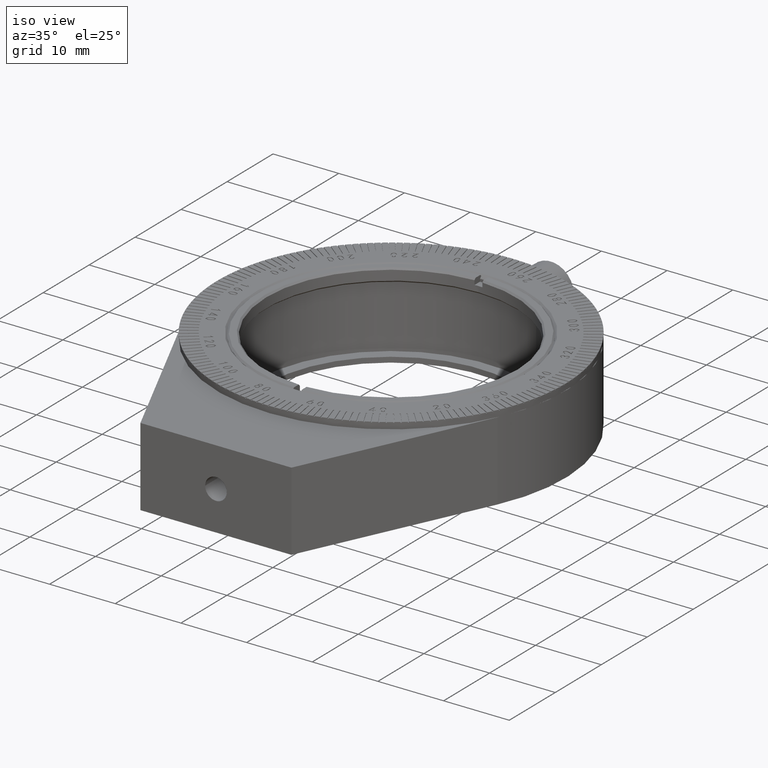
[diagram: clean part render]
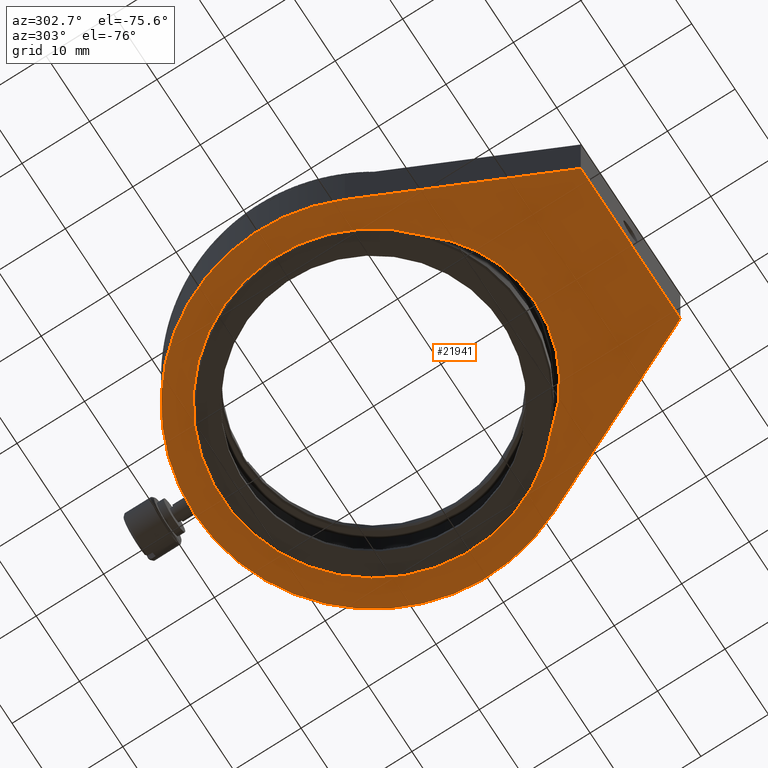
[diagram: tour spotlight — one face highlighted and labeled with its STEP entity id]
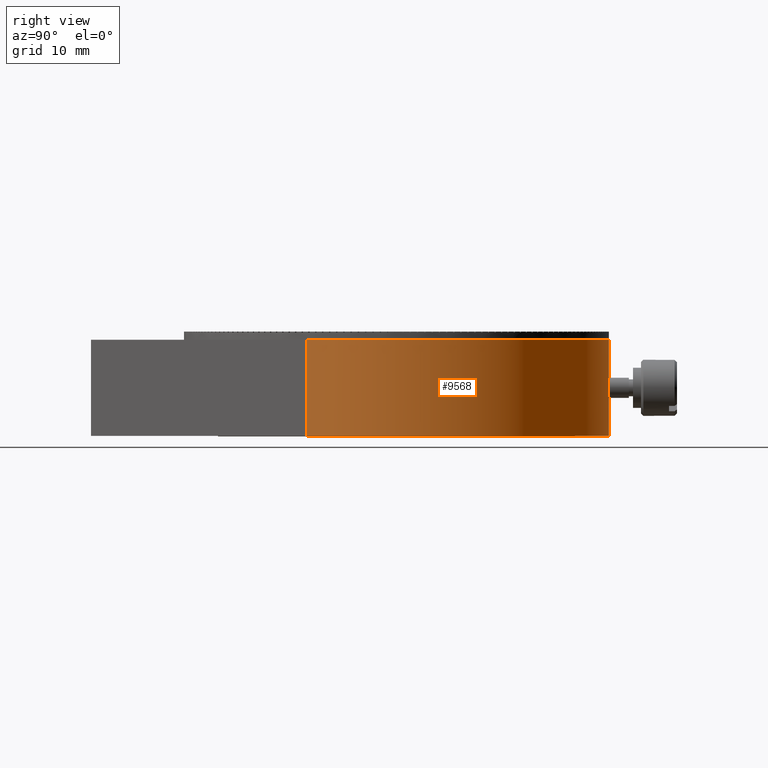
[diagram: tour spotlight — one face highlighted and labeled with its STEP entity id]
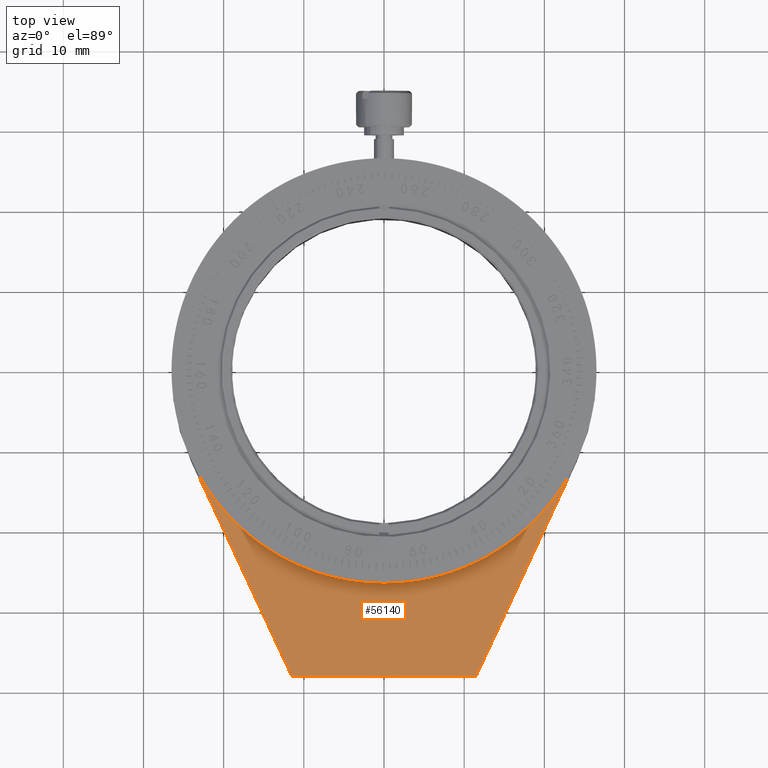
[diagram: tour spotlight — one face highlighted and labeled with its STEP entity id]
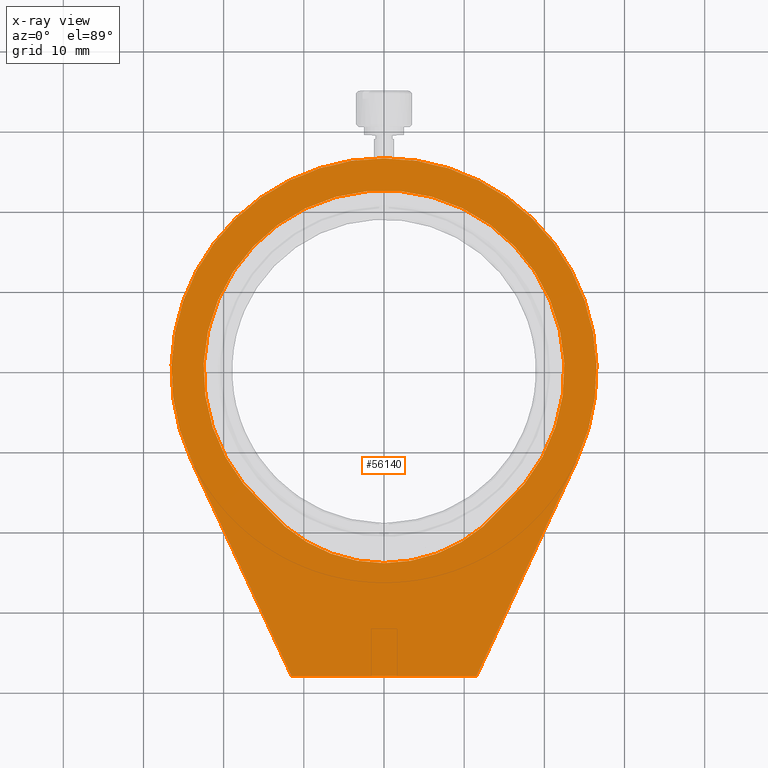
[diagram: x-ray of the same camera — body ghosted, this tour face saturated]
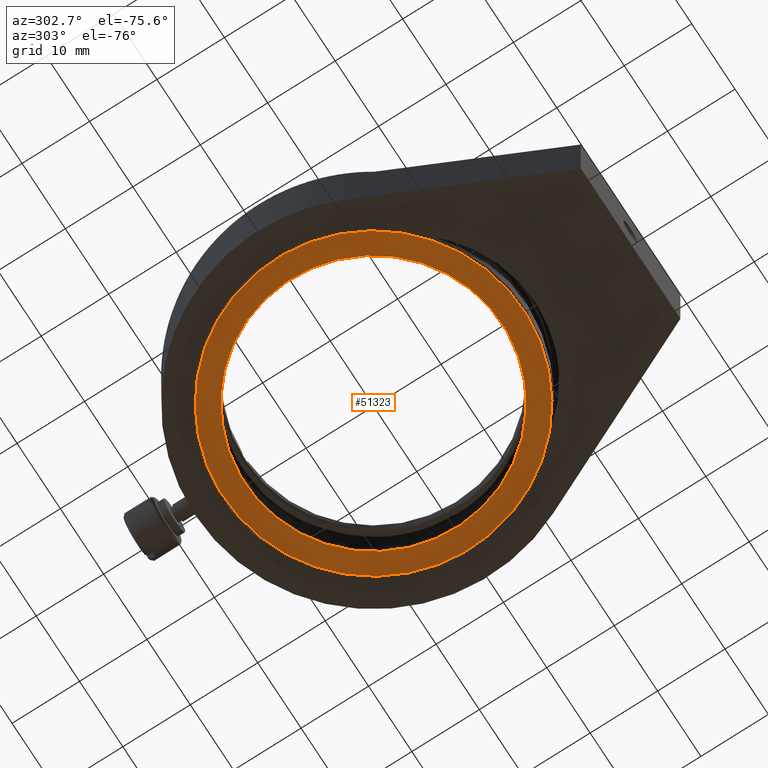
[diagram: tour spotlight — one face highlighted and labeled with its STEP entity id]
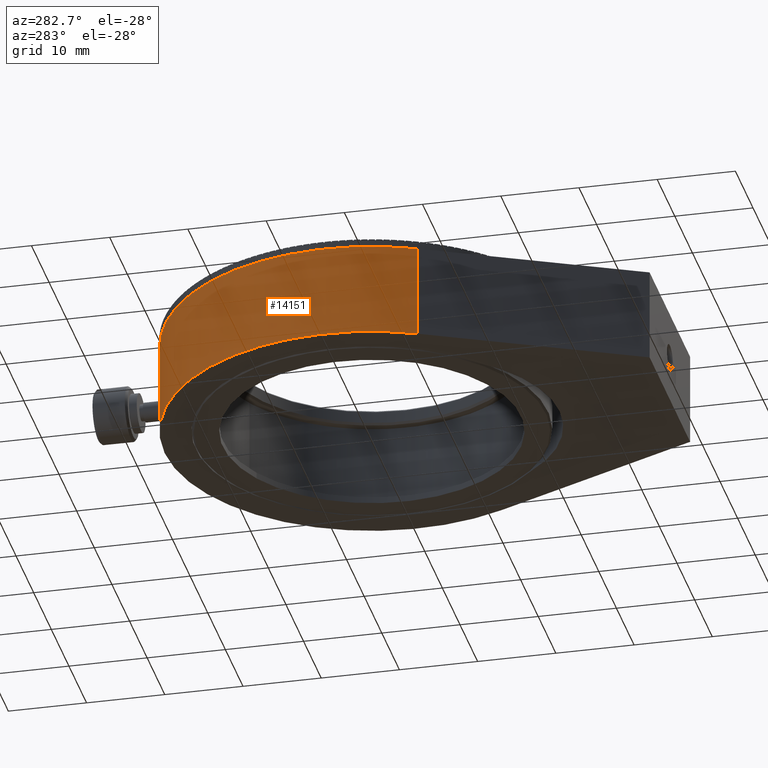
[diagram: tour spotlight — one face highlighted and labeled with its STEP entity id]
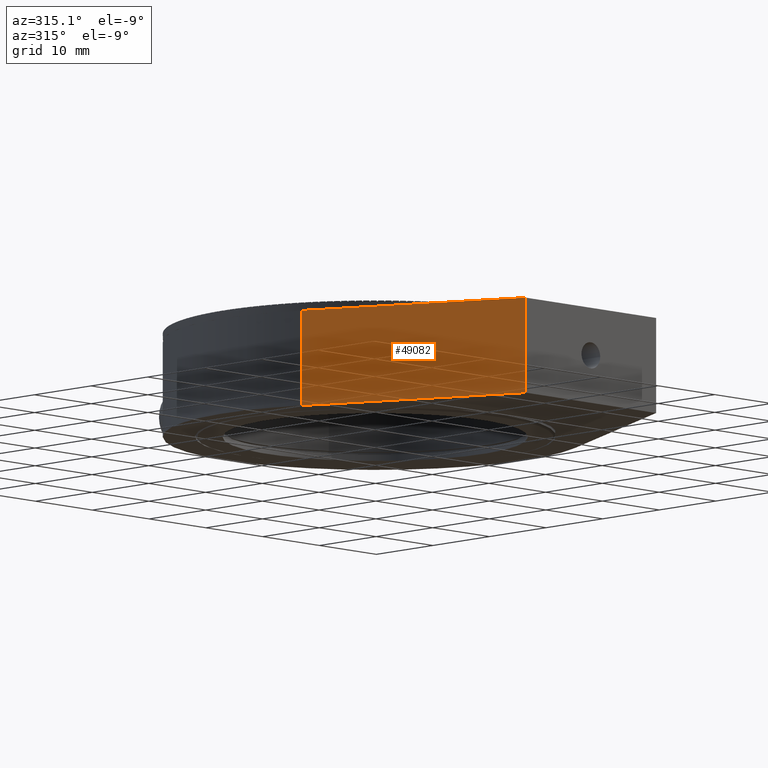
[diagram: tour spotlight — one face highlighted and labeled with its STEP entity id]
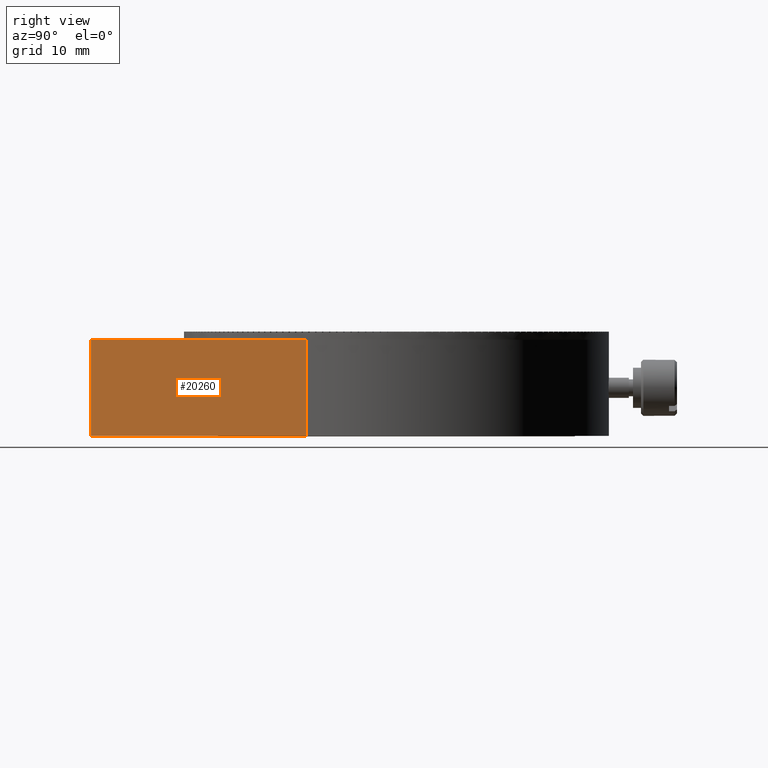
[diagram: tour spotlight — one face highlighted and labeled with its STEP entity id]
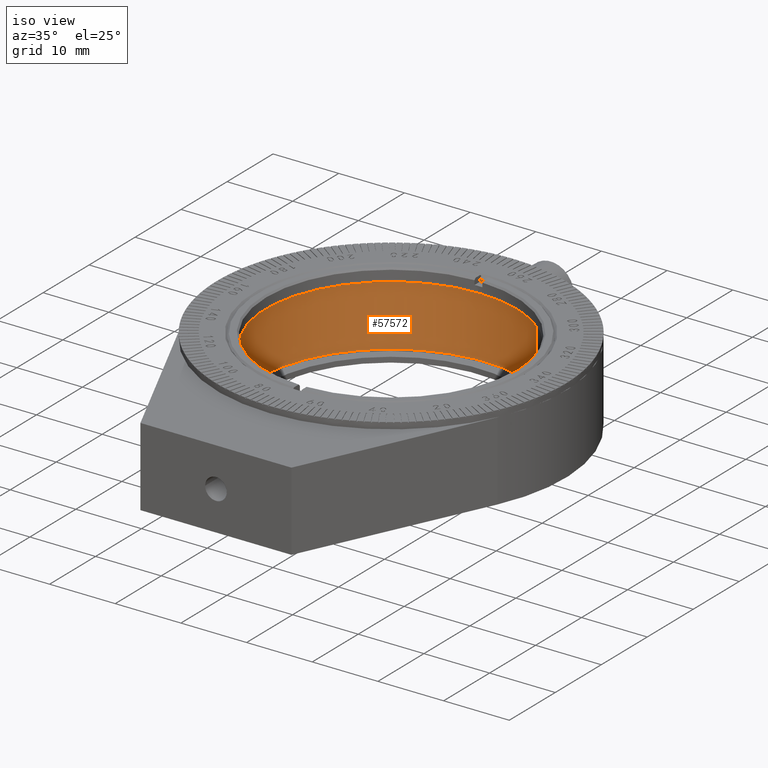
[diagram: tour spotlight — one face highlighted and labeled with its STEP entity id]
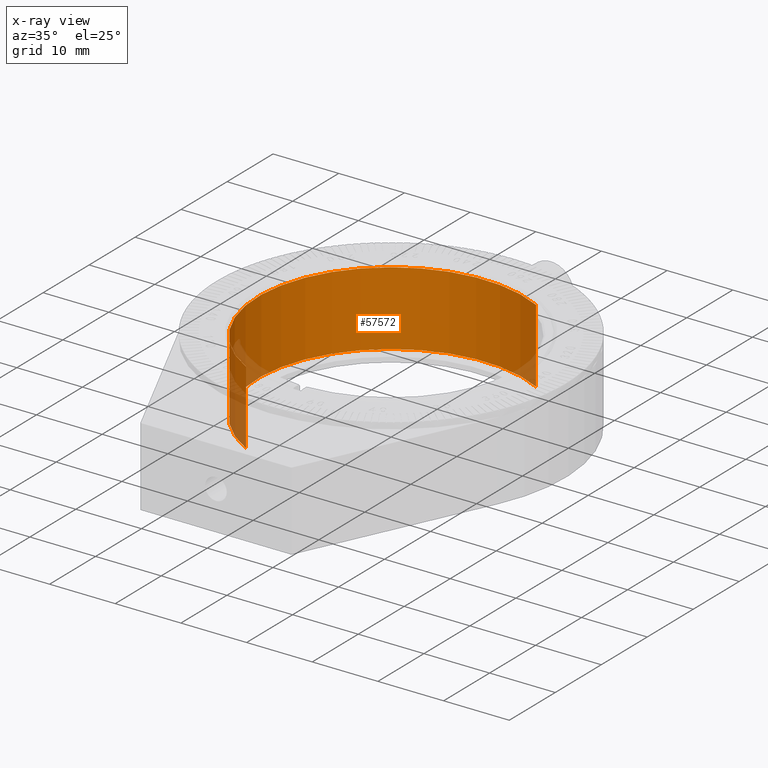
[diagram: x-ray of the same camera — body ghosted, this tour face saturated]
A machine part: a face-by-face anatomy tour. The part has 1216 B-rep faces; the first image is the clean iso view, then the 8 largest visible faces are spotlighted one at a time (largest first), each with its STEP entity span.

Face 1 — auxiliary view, entity #21941. In plain terms, the highlighted planar face has unit normal (0, 0, 1).
Definition (entity closure, byte-faithful):
#693 = CARTESIAN_POINT ( 'NONE',  ( 0.000000000000000000, 0.000000000000000000, 0.000000000000000000 ) ) ;
#1693 = DIRECTION ( 'NONE',  ( 0.4218762655402129580, 0.000000000000000000, 0.9066534159059036480 ) ) ;
#3057 = VERTEX_POINT ( 'NONE', #28458 ) ;
#3809 = AXIS2_PLACEMENT_3D ( 'NONE', #693, #5794, #25268 ) ;
#4219 = DIRECTION ( 'NONE',  ( 0.000000000000000000, 1.000000000000000000, 0.000000000000000000 ) ) ;
#4301 = AXIS2_PLACEMENT_3D ( 'NONE', #53521, #19335, #33692 ) ;
#5794 = DIRECTION ( 'NONE',  ( 0.000000000000000000, 1.000000000000000000, 0.000000000000000000 ) ) ;
#5939 = ORIENTED_EDGE ( 'NONE', *, *, #41663, .F. ) ;
#6987 = ORIENTED_EDGE ( 'NONE', *, *, #36560, .T. ) ;
#7386 = VERTEX_POINT ( 'NONE', #50400 ) ;
#7425 = LINE ( 'NONE', #46718, #44199 ) ;
#7437 = VERTEX_POINT ( 'NONE', #21331 ) ;
#7914 = VERTEX_POINT ( 'NONE', #8642 ) ;
#8642 = CARTESIAN_POINT ( 'NONE',  ( 24.02631552150645433, 0.000000000000000000, 11.17972103681563745 ) ) ;
#10161 = ORIENTED_EDGE ( 'NONE', *, *, #38792, .F. ) ;
#12512 = CARTESIAN_POINT ( 'NONE',  ( 6.123233995736765296E-16, 0.000000000000000000, 24.00000000000000000 ) ) ;
#13027 = DIRECTION ( 'NONE',  ( 0.4218762655402126249, -0.000000000000000000, -0.9066534159059038700 ) ) ;
#14198 = EDGE_LOOP ( 'NONE', ( #54582, #10161, #24866, #5939, #23705 ) ) ;
#14700 = VECTOR ( 'NONE', #58302, 1000.000000000000000 ) ;
#15290 = CARTESIAN_POINT ( 'NONE',  ( -11.49999999999999467, 0.000000000000000000, 38.10000000000000142 ) ) ;
#15405 = ORIENTED_EDGE ( 'NONE', *, *, #34667, .T. ) ;
#17173 = LINE ( 'NONE', #31844, #30286 ) ;
#17439 = VERTEX_POINT ( 'NONE', #12512 ) ;
#19335 = DIRECTION ( 'NONE',  ( 0.000000000000000000, 1.000000000000000000, 0.000000000000000000 ) ) ;
#20140 = CIRCLE ( 'NONE', #3809, 26.50000000000000355 ) ;
#21331 = CARTESIAN_POINT ( 'NONE',  ( -24.02631552150645433, 0.000000000000000000, 11.17972103681564278 ) ) ;
#21889 = CARTESIAN_POINT ( 'NONE',  ( 0.000000000000000000, 0.000000000000000000, 0.000000000000000000 ) ) ;
#21941 = ADVANCED_FACE ( 'NONE', ( #48080, #27638 ), #33387, .F. ) ;
#23705 = ORIENTED_EDGE ( 'NONE', *, *, #39220, .F. ) ;
#24139 = AXIS2_PLACEMENT_3D ( 'NONE', #21889, #36255, #50961 ) ;
#24866 = ORIENTED_EDGE ( 'NONE', *, *, #62042, .F. ) ;
#25268 = DIRECTION ( 'NONE',  ( 0.000000000000000000, 0.000000000000000000, 1.000000000000000000 ) ) ;
#27451 = CARTESIAN_POINT ( 'NONE',  ( 6.123233995736765296E-16, 0.000000000000000000, 5.000000000000000000 ) ) ;
#27638 = FACE_OUTER_BOUND ( 'NONE', #14198, .T. ) ;
#27859 = CARTESIAN_POINT ( 'NONE',  ( 0.000000000000000000, 0.000000000000000000, 0.000000000000000000 ) ) ;
#28458 = CARTESIAN_POINT ( 'NONE',  ( 0.000000000000000000, 0.000000000000000000, -26.50000000000000355 ) ) ;
#29194 = CIRCLE ( 'NONE', #50572, 19.00000000000000000 ) ;
#29854 = EDGE_CURVE ( 'NONE', #7914, #3057, #34146, .T. ) ;
#30157 = CARTESIAN_POINT ( 'NONE',  ( 6.123233995736765296E-16, 0.000000000000000000, 5.000000000000000000 ) ) ;
#30214 = EDGE_LOOP ( 'NONE', ( #15405, #54291, #6987 ) ) ;
#30286 = VECTOR ( 'NONE', #13027, 1000.000000000000114 ) ;
#31844 = CARTESIAN_POINT ( 'NONE',  ( 24.02631552150645433, 0.000000000000000000, 11.17972103681563745 ) ) ;
#31923 = DIRECTION ( 'NONE',  ( 0.000000000000000000, 0.000000000000000000, 1.000000000000000000 ) ) ;
#33387 = PLANE ( 'NONE',  #4301 ) ;
#33685 = EDGE_CURVE ( 'NONE', #36043, #17439, #57519, .T. ) ;
#33692 = DIRECTION ( 'NONE',  ( 0.000000000000000000, -0.000000000000000000, 1.000000000000000000 ) ) ;
#34146 = CIRCLE ( 'NONE', #61717, 26.50000000000000355 ) ;
#34667 = EDGE_CURVE ( 'NONE', #7386, #36043, #40458, .T. ) ;
#36043 = VERTEX_POINT ( 'NONE', #60709 ) ;
#36255 = DIRECTION ( 'NONE',  ( 0.000000000000000000, 1.000000000000000000, 0.000000000000000000 ) ) ;
#36560 = EDGE_CURVE ( 'NONE', #17439, #7386, #29194, .T. ) ;
#38792 = EDGE_CURVE ( 'NONE', #48562, #7914, #17173, .T. ) ;
#39128 = LINE ( 'NONE', #58619, #14700 ) ;
#39220 = EDGE_CURVE ( 'NONE', #3057, #7437, #20140, .T. ) ;
#40458 = CIRCLE ( 'NONE', #24139, 22.50000000000000355 ) ;
#41663 = EDGE_CURVE ( 'NONE', #7437, #56861, #7425, .T. ) ;
#44199 = VECTOR ( 'NONE', #1693, 1000.000000000000114 ) ;
#45151 = DIRECTION ( 'NONE',  ( 0.000000000000000000, 1.000000000000000000, 0.000000000000000000 ) ) ;
#46718 = CARTESIAN_POINT ( 'NONE',  ( -24.02631552150645433, 0.000000000000000000, 11.17972103681564278 ) ) ;
#48080 = FACE_BOUND ( 'NONE', #30214, .T. ) ;
#48562 = VERTEX_POINT ( 'NONE', #59453 ) ;
#50400 = CARTESIAN_POINT ( 'NONE',  ( 14.71051919546009223, 0.000000000000000000, 17.02500000000001279 ) ) ;
#50572 = AXIS2_PLACEMENT_3D ( 'NONE', #30157, #45151, #58612 ) ;
#50961 = DIRECTION ( 'NONE',  ( 0.000000000000000000, 0.000000000000000000, 1.000000000000000000 ) ) ;
#52382 = DIRECTION ( 'NONE',  ( 0.000000000000000000, 1.000000000000000000, 0.000000000000000000 ) ) ;
#53521 = CARTESIAN_POINT ( 'NONE',  ( 0.000000000000000000, 0.000000000000000000, 0.000000000000000000 ) ) ;
#54291 = ORIENTED_EDGE ( 'NONE', *, *, #33685, .T. ) ;
#54415 = AXIS2_PLACEMENT_3D ( 'NONE', #27451, #52382, #31923 ) ;
#54582 = ORIENTED_EDGE ( 'NONE', *, *, #29854, .F. ) ;
#56861 = VERTEX_POINT ( 'NONE', #15290 ) ;
#56959 = DIRECTION ( 'NONE',  ( 0.000000000000000000, 0.000000000000000000, 1.000000000000000000 ) ) ;
#57519 = CIRCLE ( 'NONE', #54415, 19.00000000000000000 ) ;
#58302 = DIRECTION ( 'NONE',  ( 1.000000000000000000, 0.000000000000000000, 0.000000000000000000 ) ) ;
#58612 = DIRECTION ( 'NONE',  ( 0.000000000000000000, 0.000000000000000000, 1.000000000000000000 ) ) ;
#58619 = CARTESIAN_POINT ( 'NONE',  ( -11.49999999999999467, 0.000000000000000000, 38.10000000000000142 ) ) ;
#59453 = CARTESIAN_POINT ( 'NONE',  ( 11.50000000000000533, 0.000000000000000000, 38.10000000000000142 ) ) ;
#60709 = CARTESIAN_POINT ( 'NONE',  ( -14.71051919546008513, 0.000000000000000000, 17.02500000000001634 ) ) ;
#61717 = AXIS2_PLACEMENT_3D ( 'NONE', #27859, #4219, #56959 ) ;
#62042 = EDGE_CURVE ( 'NONE', #56861, #48562, #39128, .T. ) ;

Face 2 — right view, entity #9568. In plain terms, the highlighted cylindrical surface (partial cylindrical patch) has radius 26.5 mm, axis along (-0, -0, -1).
Definition (entity closure, byte-faithful):
#958 = CARTESIAN_POINT ( 'NONE',  ( 1.024999999999995470, 5.866244836570563947, -26.48016946698039575 ) ) ;
#1707 = CARTESIAN_POINT ( 'NONE',  ( 0.9984107039990427479, 6.268017368793022293, -26.48123520573021139 ) ) ;
#2026 = DIRECTION ( 'NONE',  ( -0.000000000000000000, -1.000000000000000000, -0.000000000000000000 ) ) ;
#2322 = AXIS2_PLACEMENT_3D ( 'NONE', #45082, #15101, #15407 ) ;
#2345 = LINE ( 'NONE', #32667, #44683 ) ;
#2741 = EDGE_LOOP ( 'NONE', ( #40285, #12421, #61053, #24281, #62384, #61979, #12528 ) ) ;
#3057 = VERTEX_POINT ( 'NONE', #28458 ) ;
#3720 = CYLINDRICAL_SURFACE ( 'NONE', #7356, 26.50000000000000355 ) ;
#4219 = DIRECTION ( 'NONE',  ( 0.000000000000000000, 1.000000000000000000, 0.000000000000000000 ) ) ;
#6855 = CARTESIAN_POINT ( 'NONE',  ( 1.024999999999995026, 6.000000000000000000, -26.48016946698038154 ) ) ;
#7356 = AXIS2_PLACEMENT_3D ( 'NONE', #42693, #27352, #13307 ) ;
#7914 = VERTEX_POINT ( 'NONE', #8642 ) ;
#8482 = CARTESIAN_POINT ( 'NONE',  ( 24.02631552150645433, 12.00000000000000000, 11.17972103681563745 ) ) ;
#8642 = CARTESIAN_POINT ( 'NONE',  ( 24.02631552150645433, 0.000000000000000000, 11.17972103681563745 ) ) ;
#9207 = CARTESIAN_POINT ( 'NONE',  ( 6.001570846847187291E-13, 7.025000000005595879, -26.50000000000021672 ) ) ;
#9568 = ADVANCED_FACE ( 'NONE', ( #47158 ), #3720, .T. ) ;
#11487 = CIRCLE ( 'NONE', #2322, 26.50000000000000355 ) ;
#12421 = ORIENTED_EDGE ( 'NONE', *, *, #40884, .F. ) ;
#12528 = ORIENTED_EDGE ( 'NONE', *, *, #30675, .T. ) ;
#13307 = DIRECTION ( 'NONE',  ( 0.000000000000000000, 0.000000000000000000, -1.000000000000000000 ) ) ;
#15101 = DIRECTION ( 'NONE',  ( 0.000000000000000000, 1.000000000000000000, 0.000000000000000000 ) ) ;
#15208 = B_SPLINE_CURVE_WITH_KNOTS ( 'NONE', 3,
 ( #15466, #59238, #1707, #51449, #22370, #34935, #54444, #59539, #40675, #15783 ),
 .UNSPECIFIED., .F., .F.,
 ( 4, 2, 2, 2, 4 ),
 ( 0.001602822513376310704, 0.002003346140975530761, 0.002403869768574751035, 0.002804393396173971310, 0.003204917023773191584 ),
 .UNSPECIFIED. ) ;
#15341 = CARTESIAN_POINT ( 'NONE',  ( 0.2684473790037883445, 5.001687726428366787, -26.49893120856939177 ) ) ;
#15394 = VERTEX_POINT ( 'NONE', #25514 ) ;
#15407 = DIRECTION ( 'NONE',  ( 0.000000000000000000, 0.000000000000000000, 1.000000000000000000 ) ) ;
#15466 = CARTESIAN_POINT ( 'NONE',  ( 1.024999999999995026, 6.000000000000000000, -26.48016946698038154 ) ) ;
#15783 = CARTESIAN_POINT ( 'NONE',  ( 6.001570846847187291E-13, 7.025000000005595879, -26.50000000000021672 ) ) ;
#18259 = CARTESIAN_POINT ( 'NONE',  ( 0.000000000000000000, 12.00000000000000000, -26.50000000000000355 ) ) ;
#19099 = VERTEX_POINT ( 'NONE', #6855 ) ;
#19206 = DIRECTION ( 'NONE',  ( -0.000000000000000000, -1.000000000000000000, -0.000000000000000000 ) ) ;
#19823 = CARTESIAN_POINT ( 'NONE',  ( 0.1354926301760059348, 4.975000000000005862, -26.49999999999999645 ) ) ;
#20444 = CARTESIAN_POINT ( 'NONE',  ( 1.024999999999995026, 6.000000000000000000, -26.48016946698038154 ) ) ;
#21903 = VERTEX_POINT ( 'NONE', #8482 ) ;
#22370 = CARTESIAN_POINT ( 'NONE',  ( 0.8204881542323093635, 6.629070808477672827, -26.48746794309859709 ) ) ;
#24281 = ORIENTED_EDGE ( 'NONE', *, *, #29854, .T. ) ;
#25514 = CARTESIAN_POINT ( 'NONE',  ( 0.000000000000000000, 12.00000000000000000, -26.50000000000000355 ) ) ;
#26179 = CARTESIAN_POINT ( 'NONE',  ( 0.000000000000000000, 12.00000000000000000, -26.50000000000000355 ) ) ;
#26711 = EDGE_CURVE ( 'NONE', #30387, #3057, #32931, .T. ) ;
#27352 = DIRECTION ( 'NONE',  ( -0.000000000000000000, -1.000000000000000000, -0.000000000000000000 ) ) ;
#27859 = CARTESIAN_POINT ( 'NONE',  ( 0.000000000000000000, 0.000000000000000000, 0.000000000000000000 ) ) ;
#28458 = CARTESIAN_POINT ( 'NONE',  ( 0.000000000000000000, 0.000000000000000000, -26.50000000000000355 ) ) ;
#29854 = EDGE_CURVE ( 'NONE', #7914, #3057, #34146, .T. ) ;
#29921 = VECTOR ( 'NONE', #50792, 1000.000000000000000 ) ;
#30387 = VERTEX_POINT ( 'NONE', #59169 ) ;
#30675 = EDGE_CURVE ( 'NONE', #19099, #43736, #15208, .T. ) ;
#32667 = CARTESIAN_POINT ( 'NONE',  ( 24.02631552150645433, 12.00000000000000000, 11.17972103681563745 ) ) ;
#32931 = LINE ( 'NONE', #18259, #53023 ) ;
#33805 = B_SPLINE_CURVE_WITH_KNOTS ( 'NONE', 3,
 ( #44091, #19823, #15341, #34807, #44721, #39306, #58798, #34499, #958, #20444 ),
 .UNSPECIFIED., .F., .F.,
 ( 4, 2, 2, 2, 4 ),
 ( 1.117699854065066726E-19, 0.0004007056283440778386, 0.0008014112566881553519, 0.001202116885032232865, 0.001602822513376310704 ),
 .UNSPECIFIED. ) ;
#34146 = CIRCLE ( 'NONE', #61717, 26.50000000000000355 ) ;
#34499 = CARTESIAN_POINT ( 'NONE',  ( 0.9981286614004348801, 5.731297574114355697, -26.48124529994762000 ) ) ;
#34807 = CARTESIAN_POINT ( 'NONE',  ( 0.5167681984268737150, 5.104655362470733593, -26.49525183539272177 ) ) ;
#34935 = CARTESIAN_POINT ( 'NONE',  ( 0.6291560241933299436, 6.820422812052138184, -26.49270317549970599 ) ) ;
#39306 = CARTESIAN_POINT ( 'NONE',  ( 0.8195954558819448232, 5.370094413945521339, -26.48749157537542942 ) ) ;
#40285 = ORIENTED_EDGE ( 'NONE', *, *, #60932, .F. ) ;
#40675 = CARTESIAN_POINT ( 'NONE',  ( 0.1337700915664052914, 7.024999999999871569, -26.49999999999999289 ) ) ;
#40884 = EDGE_CURVE ( 'NONE', #21903, #15394, #11487, .T. ) ;
#42693 = CARTESIAN_POINT ( 'NONE',  ( 0.000000000000000000, 12.00000000000000000, 0.000000000000000000 ) ) ;
#43736 = VERTEX_POINT ( 'NONE', #9207 ) ;
#44091 = CARTESIAN_POINT ( 'NONE',  ( 7.703709720371123511E-17, 4.975000000000004974, -26.50000000000000355 ) ) ;
#44683 = VECTOR ( 'NONE', #2026, 1000.000000000000000 ) ;
#44721 = CARTESIAN_POINT ( 'NONE',  ( 0.6304926308432247106, 5.180856055935612936, -26.49266739513670643 ) ) ;
#45082 = CARTESIAN_POINT ( 'NONE',  ( 0.000000000000000000, 12.00000000000000000, 0.000000000000000000 ) ) ;
#47158 = FACE_OUTER_BOUND ( 'NONE', #2741, .T. ) ;
#49569 = EDGE_CURVE ( 'NONE', #30387, #19099, #33805, .T. ) ;
#50472 = LINE ( 'NONE', #26179, #29921 ) ;
#50792 = DIRECTION ( 'NONE',  ( -0.000000000000000000, -1.000000000000000000, -0.000000000000000000 ) ) ;
#51449 = CARTESIAN_POINT ( 'NONE',  ( 0.8956764673884789474, 6.516159771389726352, -26.48490901666137631 ) ) ;
#53023 = VECTOR ( 'NONE', #19206, 1000.000000000000000 ) ;
#54444 = CARTESIAN_POINT ( 'NONE',  ( 0.5163269539683069675, 6.895601459100650032, -26.49526062648063274 ) ) ;
#54533 = EDGE_CURVE ( 'NONE', #21903, #7914, #2345, .T. ) ;
#56959 = DIRECTION ( 'NONE',  ( 0.000000000000000000, 0.000000000000000000, 1.000000000000000000 ) ) ;
#58798 = CARTESIAN_POINT ( 'NONE',  ( 0.8959499374445942799, 5.484504580060228562, -26.48489922900028404 ) ) ;
#59169 = CARTESIAN_POINT ( 'NONE',  ( 7.703709720371123511E-17, 4.975000000000004974, -26.50000000000000355 ) ) ;
#59238 = CARTESIAN_POINT ( 'NONE',  ( 1.024999999999995026, 6.133694411751272391, -26.48016946698038154 ) ) ;
#59539 = CARTESIAN_POINT ( 'NONE',  ( 0.2679255836821761161, 6.998454494980101970, -26.49893667810348674 ) ) ;
#60932 = EDGE_CURVE ( 'NONE', #15394, #43736, #50472, .T. ) ;
#61053 = ORIENTED_EDGE ( 'NONE', *, *, #54533, .T. ) ;
#61717 = AXIS2_PLACEMENT_3D ( 'NONE', #27859, #4219, #56959 ) ;
#61979 = ORIENTED_EDGE ( 'NONE', *, *, #49569, .T. ) ;
#62384 = ORIENTED_EDGE ( 'NONE', *, *, #26711, .F. ) ;

Face 3 — top view, entity #56140. An x-ray twin of the same camera follows (body ghosted, this face saturated) — the face is partly hidden behind the body. In plain terms, the highlighted planar face has unit normal (0, 0, 1).
Definition (entity closure, byte-faithful):
#124 = VECTOR ( 'NONE', #54532, 1000.000000000000114 ) ;
#2322 = AXIS2_PLACEMENT_3D ( 'NONE', #45082, #15101, #15407 ) ;
#2914 = LINE ( 'NONE', #28442, #27291 ) ;
#6313 = CARTESIAN_POINT ( 'NONE',  ( 6.123233995736765296E-16, 12.00000000000000000, 24.00000000000000000 ) ) ;
#7180 = VERTEX_POINT ( 'NONE', #14464 ) ;
#8482 = CARTESIAN_POINT ( 'NONE',  ( 24.02631552150645433, 12.00000000000000000, 11.17972103681563745 ) ) ;
#8651 = DIRECTION ( 'NONE',  ( 1.000000000000000000, 0.000000000000000000, 0.000000000000000000 ) ) ;
#8894 = AXIS2_PLACEMENT_3D ( 'NONE', #9162, #48125, #51989 ) ;
#9162 = CARTESIAN_POINT ( 'NONE',  ( 0.000000000000000000, 12.00000000000000000, 0.000000000000000000 ) ) ;
#9833 = CARTESIAN_POINT ( 'NONE',  ( 24.02631552150645433, 12.00000000000000000, 11.17972103681563745 ) ) ;
#10042 = ORIENTED_EDGE ( 'NONE', *, *, #49814, .F. ) ;
#10247 = EDGE_CURVE ( 'NONE', #35935, #14501, #35802, .T. ) ;
#10594 = EDGE_CURVE ( 'NONE', #41103, #21903, #30544, .T. ) ;
#11399 = DIRECTION ( 'NONE',  ( 0.000000000000000000, 1.000000000000000000, 0.000000000000000000 ) ) ;
#11487 = CIRCLE ( 'NONE', #2322, 26.50000000000000355 ) ;
#12985 = EDGE_CURVE ( 'NONE', #40215, #42024, #22300, .T. ) ;
#14464 = CARTESIAN_POINT ( 'NONE',  ( -14.71051919546008513, 12.00000000000000000, 17.02500000000001634 ) ) ;
#14501 = VERTEX_POINT ( 'NONE', #49606 ) ;
#14933 = ORIENTED_EDGE ( 'NONE', *, *, #12985, .T. ) ;
#15101 = DIRECTION ( 'NONE',  ( 0.000000000000000000, 1.000000000000000000, 0.000000000000000000 ) ) ;
#15394 = VERTEX_POINT ( 'NONE', #25514 ) ;
#15407 = DIRECTION ( 'NONE',  ( 0.000000000000000000, 0.000000000000000000, 1.000000000000000000 ) ) ;
#16205 = EDGE_CURVE ( 'NONE', #7180, #35935, #44892, .T. ) ;
#16244 = ORIENTED_EDGE ( 'NONE', *, *, #10247, .F. ) ;
#16475 = CARTESIAN_POINT ( 'NONE',  ( -24.02631552150645433, 12.00000000000000000, 11.17972103681564278 ) ) ;
#17138 = DIRECTION ( 'NONE',  ( 0.000000000000000000, 1.000000000000000000, 0.000000000000000000 ) ) ;
#21903 = VERTEX_POINT ( 'NONE', #8482 ) ;
#22300 = LINE ( 'NONE', #41781, #51476 ) ;
#22472 = EDGE_CURVE ( 'NONE', #42024, #41103, #2914, .T. ) ;
#22554 = AXIS2_PLACEMENT_3D ( 'NONE', #41424, #26086, #30885 ) ;
#25065 = DIRECTION ( 'NONE',  ( 0.000000000000000000, 1.000000000000000000, 0.000000000000000000 ) ) ;
#25514 = CARTESIAN_POINT ( 'NONE',  ( 0.000000000000000000, 12.00000000000000000, -26.50000000000000355 ) ) ;
#26086 = DIRECTION ( 'NONE',  ( 0.000000000000000000, 1.000000000000000000, 0.000000000000000000 ) ) ;
#27291 = VECTOR ( 'NONE', #8651, 1000.000000000000000 ) ;
#27456 = ORIENTED_EDGE ( 'NONE', *, *, #16205, .F. ) ;
#27904 = PLANE ( 'NONE',  #33539 ) ;
#28442 = CARTESIAN_POINT ( 'NONE',  ( -11.49999999999999467, 12.00000000000000000, 38.10000000000000142 ) ) ;
#29123 = CARTESIAN_POINT ( 'NONE',  ( -11.49999999999999467, 12.00000000000000000, 38.10000000000000142 ) ) ;
#30544 = LINE ( 'NONE', #9833, #124 ) ;
#30885 = DIRECTION ( 'NONE',  ( 0.000000000000000000, 0.000000000000000000, 1.000000000000000000 ) ) ;
#32284 = CARTESIAN_POINT ( 'NONE',  ( 11.50000000000000533, 12.00000000000000000, 38.10000000000000142 ) ) ;
#33539 = AXIS2_PLACEMENT_3D ( 'NONE', #46770, #11399, #42618 ) ;
#34227 = AXIS2_PLACEMENT_3D ( 'NONE', #35972, #17138, #40470 ) ;
#35655 = ORIENTED_EDGE ( 'NONE', *, *, #22472, .T. ) ;
#35802 = CIRCLE ( 'NONE', #22554, 19.00000000000000000 ) ;
#35935 = VERTEX_POINT ( 'NONE', #6313 ) ;
#35972 = CARTESIAN_POINT ( 'NONE',  ( 0.000000000000000000, 12.00000000000000000, 0.000000000000000000 ) ) ;
#37240 = CARTESIAN_POINT ( 'NONE',  ( 6.123233995736765296E-16, 12.00000000000000000, 5.000000000000000000 ) ) ;
#39497 = CIRCLE ( 'NONE', #8894, 26.50000000000000355 ) ;
#40215 = VERTEX_POINT ( 'NONE', #16475 ) ;
#40470 = DIRECTION ( 'NONE',  ( 0.000000000000000000, 0.000000000000000000, 1.000000000000000000 ) ) ;
#40780 = FACE_OUTER_BOUND ( 'NONE', #43968, .T. ) ;
#40884 = EDGE_CURVE ( 'NONE', #21903, #15394, #11487, .T. ) ;
#41103 = VERTEX_POINT ( 'NONE', #32284 ) ;
#41424 = CARTESIAN_POINT ( 'NONE',  ( 6.123233995736765296E-16, 12.00000000000000000, 5.000000000000000000 ) ) ;
#41781 = CARTESIAN_POINT ( 'NONE',  ( -24.02631552150645433, 12.00000000000000000, 11.17972103681564278 ) ) ;
#41823 = AXIS2_PLACEMENT_3D ( 'NONE', #37240, #25065, #48406 ) ;
#42024 = VERTEX_POINT ( 'NONE', #29123 ) ;
#42618 = DIRECTION ( 'NONE',  ( 0.000000000000000000, -0.000000000000000000, 1.000000000000000000 ) ) ;
#43674 = ORIENTED_EDGE ( 'NONE', *, *, #40884, .T. ) ;
#43968 = EDGE_LOOP ( 'NONE', ( #43674, #60955, #14933, #35655, #62927 ) ) ;
#44892 = CIRCLE ( 'NONE', #41823, 19.00000000000000000 ) ;
#45082 = CARTESIAN_POINT ( 'NONE',  ( 0.000000000000000000, 12.00000000000000000, 0.000000000000000000 ) ) ;
#46770 = CARTESIAN_POINT ( 'NONE',  ( 0.000000000000000000, 12.00000000000000000, 0.000000000000000000 ) ) ;
#48125 = DIRECTION ( 'NONE',  ( 0.000000000000000000, 1.000000000000000000, 0.000000000000000000 ) ) ;
#48406 = DIRECTION ( 'NONE',  ( 0.000000000000000000, 0.000000000000000000, 1.000000000000000000 ) ) ;
#49606 = CARTESIAN_POINT ( 'NONE',  ( 14.71051919546009223, 12.00000000000000000, 17.02500000000001279 ) ) ;
#49671 = EDGE_LOOP ( 'NONE', ( #27456, #10042, #16244 ) ) ;
#49814 = EDGE_CURVE ( 'NONE', #14501, #7180, #56698, .T. ) ;
#51476 = VECTOR ( 'NONE', #61278, 1000.000000000000114 ) ;
#51989 = DIRECTION ( 'NONE',  ( 0.000000000000000000, 0.000000000000000000, 1.000000000000000000 ) ) ;
#52461 = EDGE_CURVE ( 'NONE', #15394, #40215, #39497, .T. ) ;
#52521 = FACE_BOUND ( 'NONE', #49671, .T. ) ;
#54532 = DIRECTION ( 'NONE',  ( 0.4218762655402126249, -0.000000000000000000, -0.9066534159059038700 ) ) ;
#56140 = ADVANCED_FACE ( 'NONE', ( #52521, #40780 ), #27904, .T. ) ;
#56698 = CIRCLE ( 'NONE', #34227, 22.50000000000000355 ) ;
#60955 = ORIENTED_EDGE ( 'NONE', *, *, #52461, .T. ) ;
#61278 = DIRECTION ( 'NONE',  ( 0.4218762655402129580, 0.000000000000000000, 0.9066534159059036480 ) ) ;
#62927 = ORIENTED_EDGE ( 'NONE', *, *, #10594, .T. ) ;

Face 4 — auxiliary view, entity #51323. In plain terms, the highlighted planar face has unit normal (0, -0, -1).
Definition (entity closure, byte-faithful):
#1522 = DIRECTION ( 'NONE',  ( 0.000000000000000000, 0.000000000000000000, 1.000000000000000000 ) ) ;
#2588 = ORIENTED_EDGE ( 'NONE', *, *, #57290, .T. ) ;
#3439 = VERTEX_POINT ( 'NONE', #15285 ) ;
#4204 = CARTESIAN_POINT ( 'NONE',  ( 0.000000000000000000, -12.05000000000000071, 22.24999999999998579 ) ) ;
#5946 = CARTESIAN_POINT ( 'NONE',  ( 0.000000000000000000, -12.05000000000000071, 0.000000000000000000 ) ) ;
#6451 = FACE_BOUND ( 'NONE', #28954, .T. ) ;
#6772 = CARTESIAN_POINT ( 'NONE',  ( 0.000000000000000000, -12.05000000000000071, 0.000000000000000000 ) ) ;
#6813 = EDGE_CURVE ( 'NONE', #52499, #3439, #30179, .T. ) ;
#8265 = AXIS2_PLACEMENT_3D ( 'NONE', #43505, #62999, #19229 ) ;
#8532 = CARTESIAN_POINT ( 'NONE',  ( 2.332952152375708043E-15, -12.05000000000000071, -19.05000000000000071 ) ) ;
#12840 = CARTESIAN_POINT ( 'NONE',  ( 2.740147213092202095E-15, -12.05000000000000071, -22.24999999999998579 ) ) ;
#15285 = CARTESIAN_POINT ( 'NONE',  ( 0.000000000000000000, -12.05000000000000071, 19.05000000000000071 ) ) ;
#16413 = DIRECTION ( 'NONE',  ( 0.000000000000000000, 0.000000000000000000, 1.000000000000000000 ) ) ;
#17422 = VERTEX_POINT ( 'NONE', #12840 ) ;
#18221 = ORIENTED_EDGE ( 'NONE', *, *, #46330, .T. ) ;
#19229 = DIRECTION ( 'NONE',  ( 0.000000000000000000, 0.000000000000000000, -1.000000000000000000 ) ) ;
#20581 = VERTEX_POINT ( 'NONE', #4204 ) ;
#22104 = DIRECTION ( 'NONE',  ( 0.000000000000000000, -1.000000000000000000, 0.000000000000000000 ) ) ;
#24440 = ORIENTED_EDGE ( 'NONE', *, *, #6813, .T. ) ;
#25417 = DIRECTION ( 'NONE',  ( 0.000000000000000000, -1.000000000000000000, 0.000000000000000000 ) ) ;
#25952 = AXIS2_PLACEMENT_3D ( 'NONE', #5946, #25417, #53891 ) ;
#28954 = EDGE_LOOP ( 'NONE', ( #18221, #24440 ) ) ;
#30179 = CIRCLE ( 'NONE', #34278, 19.05000000000000071 ) ;
#30221 = AXIS2_PLACEMENT_3D ( 'NONE', #6772, #22104, #40330 ) ;
#31360 = PLANE ( 'NONE',  #30221 ) ;
#33099 = CIRCLE ( 'NONE', #25952, 22.24999999999998579 ) ;
#34278 = AXIS2_PLACEMENT_3D ( 'NONE', #40695, #60183, #16413 ) ;
#34797 = CIRCLE ( 'NONE', #8265, 22.24999999999998579 ) ;
#36152 = FACE_OUTER_BOUND ( 'NONE', #43774, .T. ) ;
#36632 = DIRECTION ( 'NONE',  ( 0.000000000000000000, 1.000000000000000000, 0.000000000000000000 ) ) ;
#40183 = CARTESIAN_POINT ( 'NONE',  ( 0.000000000000000000, -12.05000000000000071, 0.000000000000000000 ) ) ;
#40330 = DIRECTION ( 'NONE',  ( 0.000000000000000000, -0.000000000000000000, -1.000000000000000000 ) ) ;
#40695 = CARTESIAN_POINT ( 'NONE',  ( 0.000000000000000000, -12.05000000000000071, 0.000000000000000000 ) ) ;
#43505 = CARTESIAN_POINT ( 'NONE',  ( 0.000000000000000000, -12.05000000000000071, 0.000000000000000000 ) ) ;
#43774 = EDGE_LOOP ( 'NONE', ( #2588, #50594 ) ) ;
#44277 = AXIS2_PLACEMENT_3D ( 'NONE', #40183, #36632, #1522 ) ;
#46330 = EDGE_CURVE ( 'NONE', #3439, #52499, #59550, .T. ) ;
#47972 = EDGE_CURVE ( 'NONE', #17422, #20581, #33099, .T. ) ;
#50594 = ORIENTED_EDGE ( 'NONE', *, *, #47972, .T. ) ;
#51323 = ADVANCED_FACE ( 'NONE', ( #6451, #36152 ), #31360, .T. ) ;
#52499 = VERTEX_POINT ( 'NONE', #8532 ) ;
#53891 = DIRECTION ( 'NONE',  ( 0.000000000000000000, 0.000000000000000000, -1.000000000000000000 ) ) ;
#57290 = EDGE_CURVE ( 'NONE', #20581, #17422, #34797, .T. ) ;
#59550 = CIRCLE ( 'NONE', #44277, 19.05000000000000071 ) ;
#60183 = DIRECTION ( 'NONE',  ( 0.000000000000000000, 1.000000000000000000, 0.000000000000000000 ) ) ;
#62999 = DIRECTION ( 'NONE',  ( 0.000000000000000000, -1.000000000000000000, 0.000000000000000000 ) ) ;

Face 5 — auxiliary view, entity #14151. In plain terms, the highlighted cylindrical surface (partial cylindrical patch) has radius 26.5 mm, axis along (-0, -0, -1).
Definition (entity closure, byte-faithful):
#693 = CARTESIAN_POINT ( 'NONE',  ( 0.000000000000000000, 0.000000000000000000, 0.000000000000000000 ) ) ;
#2027 = CARTESIAN_POINT ( 'NONE',  ( 7.703709720371123511E-17, 4.975000000000004974, -26.50000000000000355 ) ) ;
#2835 = ORIENTED_EDGE ( 'NONE', *, *, #59428, .T. ) ;
#3057 = VERTEX_POINT ( 'NONE', #28458 ) ;
#3080 = CARTESIAN_POINT ( 'NONE',  ( -0.9982760933649101887, 6.268517620064377738, -26.48124039999299839 ) ) ;
#3716 = CARTESIAN_POINT ( 'NONE',  ( -1.024999999999994804, 6.135287115890012188, -26.48016946698038154 ) ) ;
#3809 = AXIS2_PLACEMENT_3D ( 'NONE', #693, #5794, #25268 ) ;
#5794 = DIRECTION ( 'NONE',  ( 0.000000000000000000, 1.000000000000000000, 0.000000000000000000 ) ) ;
#7437 = VERTEX_POINT ( 'NONE', #21331 ) ;
#7875 = CARTESIAN_POINT ( 'NONE',  ( -0.8191473523579178018, 6.630476722705128445, -26.48750551997493474 ) ) ;
#8504 = CARTESIAN_POINT ( 'NONE',  ( -0.6299980597461236620, 6.819515544370031712, -26.49267924352487569 ) ) ;
#8894 = AXIS2_PLACEMENT_3D ( 'NONE', #9162, #48125, #51989 ) ;
#8979 = VECTOR ( 'NONE', #49600, 1000.000000000000000 ) ;
#9162 = CARTESIAN_POINT ( 'NONE',  ( 0.000000000000000000, 12.00000000000000000, 0.000000000000000000 ) ) ;
#9207 = CARTESIAN_POINT ( 'NONE',  ( 6.001570846847187291E-13, 7.025000000005595879, -26.50000000000021672 ) ) ;
#9830 = EDGE_LOOP ( 'NONE', ( #56232, #49775, #32320, #2835, #14137, #61843, #13045 ) ) ;
#10556 = FACE_OUTER_BOUND ( 'NONE', #9830, .T. ) ;
#10692 = CARTESIAN_POINT ( 'NONE',  ( -0.8955011178430084540, 5.483496473256269432, -26.48491511402092513 ) ) ;
#10866 = DIRECTION ( 'NONE',  ( -0.000000000000000000, -1.000000000000000000, -0.000000000000000000 ) ) ;
#13045 = ORIENTED_EDGE ( 'NONE', *, *, #23328, .F. ) ;
#13301 = AXIS2_PLACEMENT_3D ( 'NONE', #54633, #10866, #48420 ) ;
#14137 = ORIENTED_EDGE ( 'NONE', *, *, #26711, .T. ) ;
#14151 = ADVANCED_FACE ( 'NONE', ( #10556 ), #35127, .T. ) ;
#14241 = CARTESIAN_POINT ( 'NONE',  ( 6.001570846847187291E-13, 7.025000000005595879, -26.50000000000021672 ) ) ;
#15394 = VERTEX_POINT ( 'NONE', #25514 ) ;
#15734 = LINE ( 'NONE', #29485, #8979 ) ;
#16475 = CARTESIAN_POINT ( 'NONE',  ( -24.02631552150645433, 12.00000000000000000, 11.17972103681564278 ) ) ;
#18259 = CARTESIAN_POINT ( 'NONE',  ( 0.000000000000000000, 12.00000000000000000, -26.50000000000000355 ) ) ;
#19206 = DIRECTION ( 'NONE',  ( -0.000000000000000000, -1.000000000000000000, -0.000000000000000000 ) ) ;
#20140 = CIRCLE ( 'NONE', #3809, 26.50000000000000355 ) ;
#21331 = CARTESIAN_POINT ( 'NONE',  ( -24.02631552150645433, 0.000000000000000000, 11.17972103681564278 ) ) ;
#22559 = CARTESIAN_POINT ( 'NONE',  ( -0.8954189126757471362, 6.516606079805037588, -26.48491784490991918 ) ) ;
#23328 = EDGE_CURVE ( 'NONE', #40215, #7437, #15734, .T. ) ;
#25055 = CARTESIAN_POINT ( 'NONE',  ( -1.024999999999995026, 5.864855004863279042, -26.48016946698038510 ) ) ;
#25268 = DIRECTION ( 'NONE',  ( 0.000000000000000000, 0.000000000000000000, 1.000000000000000000 ) ) ;
#25514 = CARTESIAN_POINT ( 'NONE',  ( 0.000000000000000000, 12.00000000000000000, -26.50000000000000355 ) ) ;
#25976 = CARTESIAN_POINT ( 'NONE',  ( -1.024999999999995026, 6.000000000000000000, -26.48016946698038154 ) ) ;
#26179 = CARTESIAN_POINT ( 'NONE',  ( 0.000000000000000000, 12.00000000000000000, -26.50000000000000355 ) ) ;
#26711 = EDGE_CURVE ( 'NONE', #30387, #3057, #32931, .T. ) ;
#27659 = CARTESIAN_POINT ( 'NONE',  ( -1.024999999999995026, 6.000000000000000000, -26.48016946698038154 ) ) ;
#28458 = CARTESIAN_POINT ( 'NONE',  ( 0.000000000000000000, 0.000000000000000000, -26.50000000000000355 ) ) ;
#29485 = CARTESIAN_POINT ( 'NONE',  ( -24.02631552150645433, 12.00000000000000000, 11.17972103681564278 ) ) ;
#29921 = VECTOR ( 'NONE', #50792, 1000.000000000000000 ) ;
#30387 = VERTEX_POINT ( 'NONE', #59169 ) ;
#30650 = B_SPLINE_CURVE_WITH_KNOTS ( 'NONE', 3,
 ( #25976, #25055, #30773, #10692, #40684, #44860, #55386, #2027 ),
 .UNSPECIFIED., .F., .F.,
 ( 4, 2, 2, 4 ),
 ( 0.004807853736000226863, 0.005208166937950873404, 0.005608480139901519078, 0.006409106543802811293 ),
 .UNSPECIFIED. ) ;
#30773 = CARTESIAN_POINT ( 'NONE',  ( -0.9984081439828589311, 5.731896804895033171, -26.48123547017738844 ) ) ;
#32320 = ORIENTED_EDGE ( 'NONE', *, *, #49885, .T. ) ;
#32931 = LINE ( 'NONE', #18259, #53023 ) ;
#33710 = CARTESIAN_POINT ( 'NONE',  ( -0.1338404128939895132, 7.025000000000121148, -26.50000000000001421 ) ) ;
#35127 = CYLINDRICAL_SURFACE ( 'NONE', #13301, 26.50000000000000355 ) ;
#39220 = EDGE_CURVE ( 'NONE', #3057, #7437, #20140, .T. ) ;
#39497 = CIRCLE ( 'NONE', #8894, 26.50000000000000355 ) ;
#39880 = CARTESIAN_POINT ( 'NONE',  ( -1.024999999999995026, 6.000000000000000000, -26.48016946698038154 ) ) ;
#40215 = VERTEX_POINT ( 'NONE', #16475 ) ;
#40684 = CARTESIAN_POINT ( 'NONE',  ( -0.8195238191888091217, 5.370011089003758897, -26.48749369525943465 ) ) ;
#43736 = VERTEX_POINT ( 'NONE', #9207 ) ;
#44860 = CARTESIAN_POINT ( 'NONE',  ( -0.5359507491773602972, 5.086269696660759898, -26.49525472572322116 ) ) ;
#46895 = VERTEX_POINT ( 'NONE', #39880 ) ;
#48125 = DIRECTION ( 'NONE',  ( 0.000000000000000000, 1.000000000000000000, 0.000000000000000000 ) ) ;
#48420 = DIRECTION ( 'NONE',  ( 0.000000000000000000, 0.000000000000000000, -1.000000000000000000 ) ) ;
#49600 = DIRECTION ( 'NONE',  ( -0.000000000000000000, -1.000000000000000000, -0.000000000000000000 ) ) ;
#49775 = ORIENTED_EDGE ( 'NONE', *, *, #60932, .T. ) ;
#49885 = EDGE_CURVE ( 'NONE', #43736, #46895, #61883, .T. ) ;
#50472 = LINE ( 'NONE', #26179, #29921 ) ;
#50792 = DIRECTION ( 'NONE',  ( -0.000000000000000000, -1.000000000000000000, -0.000000000000000000 ) ) ;
#51962 = CARTESIAN_POINT ( 'NONE',  ( -0.5155533918943021598, 6.895919078633047761, -26.49527199247176767 ) ) ;
#51989 = DIRECTION ( 'NONE',  ( 0.000000000000000000, 0.000000000000000000, 1.000000000000000000 ) ) ;
#52274 = CARTESIAN_POINT ( 'NONE',  ( -0.2687342741935864754, 6.998122329790321672, -26.49892479224065056 ) ) ;
#52461 = EDGE_CURVE ( 'NONE', #15394, #40215, #39497, .T. ) ;
#53023 = VECTOR ( 'NONE', #19206, 1000.000000000000000 ) ;
#54633 = CARTESIAN_POINT ( 'NONE',  ( 0.000000000000000000, 12.00000000000000000, 0.000000000000000000 ) ) ;
#55386 = CARTESIAN_POINT ( 'NONE',  ( -0.2707198740911988533, 4.975000000000006750, -26.50000000000000355 ) ) ;
#56232 = ORIENTED_EDGE ( 'NONE', *, *, #52461, .F. ) ;
#59169 = CARTESIAN_POINT ( 'NONE',  ( 7.703709720371123511E-17, 4.975000000000004974, -26.50000000000000355 ) ) ;
#59428 = EDGE_CURVE ( 'NONE', #46895, #30387, #30650, .T. ) ;
#60932 = EDGE_CURVE ( 'NONE', #15394, #43736, #50472, .T. ) ;
#61843 = ORIENTED_EDGE ( 'NONE', *, *, #39220, .T. ) ;
#61883 = B_SPLINE_CURVE_WITH_KNOTS ( 'NONE', 3,
 ( #14241, #33710, #52274, #51962, #8504, #7875, #22559, #3080, #3716, #27659 ),
 .UNSPECIFIED., .F., .F.,
 ( 4, 2, 2, 2, 4 ),
 ( 0.003204917023773191584, 0.003605651201829950404, 0.004006385379886709223, 0.004407119557943468477, 0.004807853736000226863 ),
 .UNSPECIFIED. ) ;

Face 6 — auxiliary view, entity #49082. In plain terms, the highlighted planar face has unit normal (0.9067, 0.4219, -0).
Definition (entity closure, byte-faithful):
#1693 = DIRECTION ( 'NONE',  ( 0.4218762655402129580, 0.000000000000000000, 0.9066534159059036480 ) ) ;
#2755 = PLANE ( 'NONE',  #33185 ) ;
#7044 = ORIENTED_EDGE ( 'NONE', *, *, #15923, .F. ) ;
#7116 = VECTOR ( 'NONE', #36032, 1000.000000000000000 ) ;
#7425 = LINE ( 'NONE', #46718, #44199 ) ;
#7437 = VERTEX_POINT ( 'NONE', #21331 ) ;
#8979 = VECTOR ( 'NONE', #49600, 1000.000000000000000 ) ;
#9870 = ORIENTED_EDGE ( 'NONE', *, *, #12985, .F. ) ;
#12370 = ORIENTED_EDGE ( 'NONE', *, *, #41663, .T. ) ;
#12725 = ORIENTED_EDGE ( 'NONE', *, *, #23328, .T. ) ;
#12985 = EDGE_CURVE ( 'NONE', #40215, #42024, #22300, .T. ) ;
#15290 = CARTESIAN_POINT ( 'NONE',  ( -11.49999999999999467, 0.000000000000000000, 38.10000000000000142 ) ) ;
#15734 = LINE ( 'NONE', #29485, #8979 ) ;
#15923 = EDGE_CURVE ( 'NONE', #42024, #56861, #17507, .T. ) ;
#16475 = CARTESIAN_POINT ( 'NONE',  ( -24.02631552150645433, 12.00000000000000000, 11.17972103681564278 ) ) ;
#17507 = LINE ( 'NONE', #36990, #7116 ) ;
#21331 = CARTESIAN_POINT ( 'NONE',  ( -24.02631552150645433, 0.000000000000000000, 11.17972103681564278 ) ) ;
#22300 = LINE ( 'NONE', #41781, #51476 ) ;
#23328 = EDGE_CURVE ( 'NONE', #40215, #7437, #15734, .T. ) ;
#29123 = CARTESIAN_POINT ( 'NONE',  ( -11.49999999999999467, 12.00000000000000000, 38.10000000000000142 ) ) ;
#29280 = EDGE_LOOP ( 'NONE', ( #12370, #7044, #9870, #12725 ) ) ;
#29485 = CARTESIAN_POINT ( 'NONE',  ( -24.02631552150645433, 12.00000000000000000, 11.17972103681564278 ) ) ;
#33185 = AXIS2_PLACEMENT_3D ( 'NONE', #55151, #50354, #60578 ) ;
#36032 = DIRECTION ( 'NONE',  ( -0.000000000000000000, -1.000000000000000000, -0.000000000000000000 ) ) ;
#36990 = CARTESIAN_POINT ( 'NONE',  ( -11.49999999999999467, 12.00000000000000000, 38.10000000000000142 ) ) ;
#40215 = VERTEX_POINT ( 'NONE', #16475 ) ;
#41663 = EDGE_CURVE ( 'NONE', #7437, #56861, #7425, .T. ) ;
#41781 = CARTESIAN_POINT ( 'NONE',  ( -24.02631552150645433, 12.00000000000000000, 11.17972103681564278 ) ) ;
#42024 = VERTEX_POINT ( 'NONE', #29123 ) ;
#44199 = VECTOR ( 'NONE', #1693, 1000.000000000000114 ) ;
#46512 = FACE_OUTER_BOUND ( 'NONE', #29280, .T. ) ;
#46718 = CARTESIAN_POINT ( 'NONE',  ( -24.02631552150645433, 0.000000000000000000, 11.17972103681564278 ) ) ;
#49082 = ADVANCED_FACE ( 'NONE', ( #46512 ), #2755, .F. ) ;
#49600 = DIRECTION ( 'NONE',  ( -0.000000000000000000, -1.000000000000000000, -0.000000000000000000 ) ) ;
#50354 = DIRECTION ( 'NONE',  ( 0.9066534159059037590, 0.000000000000000000, -0.4218762655402129580 ) ) ;
#51476 = VECTOR ( 'NONE', #61278, 1000.000000000000114 ) ;
#55151 = CARTESIAN_POINT ( 'NONE',  ( -24.02631552150645433, 12.00000000000000000, 11.17972103681564278 ) ) ;
#56861 = VERTEX_POINT ( 'NONE', #15290 ) ;
#60578 = DIRECTION ( 'NONE',  ( -0.4218762655402129025, 0.000000000000000000, -0.9066534159059036480 ) ) ;
#61278 = DIRECTION ( 'NONE',  ( 0.4218762655402129580, 0.000000000000000000, 0.9066534159059036480 ) ) ;

Face 7 — right view, entity #20260. In plain terms, the highlighted planar face has unit normal (-0.9067, 0.4219, -0).
Definition (entity closure, byte-faithful):
#124 = VECTOR ( 'NONE', #54532, 1000.000000000000114 ) ;
#970 = EDGE_CURVE ( 'NONE', #41103, #48562, #62684, .T. ) ;
#2026 = DIRECTION ( 'NONE',  ( -0.000000000000000000, -1.000000000000000000, -0.000000000000000000 ) ) ;
#2345 = LINE ( 'NONE', #32667, #44683 ) ;
#4916 = DIRECTION ( 'NONE',  ( -0.4218762655402126804, 0.000000000000000000, 0.9066534159059038700 ) ) ;
#5613 = EDGE_LOOP ( 'NONE', ( #56557, #44534, #40616, #52302 ) ) ;
#7914 = VERTEX_POINT ( 'NONE', #8642 ) ;
#8482 = CARTESIAN_POINT ( 'NONE',  ( 24.02631552150645433, 12.00000000000000000, 11.17972103681563745 ) ) ;
#8642 = CARTESIAN_POINT ( 'NONE',  ( 24.02631552150645433, 0.000000000000000000, 11.17972103681563745 ) ) ;
#9833 = CARTESIAN_POINT ( 'NONE',  ( 24.02631552150645433, 12.00000000000000000, 11.17972103681563745 ) ) ;
#10594 = EDGE_CURVE ( 'NONE', #41103, #21903, #30544, .T. ) ;
#12876 = DIRECTION ( 'NONE',  ( -0.000000000000000000, -1.000000000000000000, -0.000000000000000000 ) ) ;
#13027 = DIRECTION ( 'NONE',  ( 0.4218762655402126249, -0.000000000000000000, -0.9066534159059038700 ) ) ;
#14495 = PLANE ( 'NONE',  #41048 ) ;
#15442 = DIRECTION ( 'NONE',  ( -0.9066534159059038700, 0.000000000000000000, -0.4218762655402126804 ) ) ;
#17173 = LINE ( 'NONE', #31844, #30286 ) ;
#20260 = ADVANCED_FACE ( 'NONE', ( #39099 ), #14495, .F. ) ;
#21903 = VERTEX_POINT ( 'NONE', #8482 ) ;
#30286 = VECTOR ( 'NONE', #13027, 1000.000000000000114 ) ;
#30544 = LINE ( 'NONE', #9833, #124 ) ;
#31844 = CARTESIAN_POINT ( 'NONE',  ( 24.02631552150645433, 0.000000000000000000, 11.17972103681563745 ) ) ;
#32284 = CARTESIAN_POINT ( 'NONE',  ( 11.50000000000000533, 12.00000000000000000, 38.10000000000000142 ) ) ;
#32667 = CARTESIAN_POINT ( 'NONE',  ( 24.02631552150645433, 12.00000000000000000, 11.17972103681563745 ) ) ;
#38792 = EDGE_CURVE ( 'NONE', #48562, #7914, #17173, .T. ) ;
#39099 = FACE_OUTER_BOUND ( 'NONE', #5613, .T. ) ;
#40616 = ORIENTED_EDGE ( 'NONE', *, *, #10594, .F. ) ;
#41048 = AXIS2_PLACEMENT_3D ( 'NONE', #43572, #15442, #4916 ) ;
#41103 = VERTEX_POINT ( 'NONE', #32284 ) ;
#43572 = CARTESIAN_POINT ( 'NONE',  ( 24.02631552150645433, 12.00000000000000000, 11.17972103681563745 ) ) ;
#44098 = VECTOR ( 'NONE', #12876, 1000.000000000000000 ) ;
#44534 = ORIENTED_EDGE ( 'NONE', *, *, #54533, .F. ) ;
#44683 = VECTOR ( 'NONE', #2026, 1000.000000000000000 ) ;
#48562 = VERTEX_POINT ( 'NONE', #59453 ) ;
#51841 = CARTESIAN_POINT ( 'NONE',  ( 11.50000000000000533, 12.00000000000000000, 38.10000000000000142 ) ) ;
#52302 = ORIENTED_EDGE ( 'NONE', *, *, #970, .T. ) ;
#54532 = DIRECTION ( 'NONE',  ( 0.4218762655402126249, -0.000000000000000000, -0.9066534159059038700 ) ) ;
#54533 = EDGE_CURVE ( 'NONE', #21903, #7914, #2345, .T. ) ;
#56557 = ORIENTED_EDGE ( 'NONE', *, *, #38792, .T. ) ;
#59453 = CARTESIAN_POINT ( 'NONE',  ( 11.50000000000000533, 0.000000000000000000, 38.10000000000000142 ) ) ;
#62684 = LINE ( 'NONE', #51841, #44098 ) ;

Face 8 — iso view, entity #57572. An x-ray twin of the same camera follows (body ghosted, this face saturated) — the face is partly hidden behind the body. In plain terms, the highlighted cylindrical surface (partial cylindrical patch) has radius 20.25 mm, axis along (-0, 0, 1).
Definition (entity closure, byte-faithful):
#104 = DIRECTION ( 'NONE',  ( -0.000000000000000000, -1.000000000000000000, -0.000000000000000000 ) ) ;
#2232 = FACE_OUTER_BOUND ( 'NONE', #38808, .T. ) ;
#2999 = AXIS2_PLACEMENT_3D ( 'NONE', #18336, #104, #19277 ) ;
#4552 = VECTOR ( 'NONE', #24121, 1000.000000000000000 ) ;
#8317 = VERTEX_POINT ( 'NONE', #39548 ) ;
#8844 = CARTESIAN_POINT ( 'NONE',  ( 2.479909768273390300E-15, 0.4999999999999726885, -20.25000000000000000 ) ) ;
#9810 = CIRCLE ( 'NONE', #40391, 20.25000000000000000 ) ;
#13481 = EDGE_CURVE ( 'NONE', #49467, #19777, #54155, .T. ) ;
#15080 = CARTESIAN_POINT ( 'NONE',  ( 0.000000000000000000, -69.32564927611034022, 20.25000000000000000 ) ) ;
#15515 = VECTOR ( 'NONE', #29448, 1000.000000000000000 ) ;
#15698 = LINE ( 'NONE', #15080, #15515 ) ;
#18336 = CARTESIAN_POINT ( 'NONE',  ( 0.000000000000000000, -10.74999999999999645, 0.000000000000000000 ) ) ;
#19277 = DIRECTION ( 'NONE',  ( 0.000000000000000000, 0.000000000000000000, 1.000000000000000000 ) ) ;
#19777 = VERTEX_POINT ( 'NONE', #8844 ) ;
#24031 = ORIENTED_EDGE ( 'NONE', *, *, #58440, .F. ) ;
#24121 = DIRECTION ( 'NONE',  ( -0.000000000000000000, 1.000000000000000000, -0.000000000000000000 ) ) ;
#25558 = CARTESIAN_POINT ( 'NONE',  ( 0.000000000000000000, -69.32564927611034022, 0.000000000000000000 ) ) ;
#26389 = VERTEX_POINT ( 'NONE', #33635 ) ;
#26400 = EDGE_CURVE ( 'NONE', #26389, #49467, #35620, .T. ) ;
#27354 = DIRECTION ( 'NONE',  ( 0.000000000000000000, 1.000000000000000000, 0.000000000000000000 ) ) ;
#29135 = ORIENTED_EDGE ( 'NONE', *, *, #26400, .T. ) ;
#29448 = DIRECTION ( 'NONE',  ( -0.000000000000000000, 1.000000000000000000, -0.000000000000000000 ) ) ;
#29712 = CARTESIAN_POINT ( 'NONE',  ( 2.479909768273390300E-15, -10.74999999999999645, -20.25000000000000000 ) ) ;
#30982 = CYLINDRICAL_SURFACE ( 'NONE', #52191, 20.25000000000000000 ) ;
#31300 = DIRECTION ( 'NONE',  ( 0.000000000000000000, 0.000000000000000000, 1.000000000000000000 ) ) ;
#33635 = CARTESIAN_POINT ( 'NONE',  ( 0.000000000000000000, -10.74999999999999645, 20.25000000000000000 ) ) ;
#34340 = CARTESIAN_POINT ( 'NONE',  ( 2.479909768273390300E-15, -69.32564927611034022, -20.25000000000000000 ) ) ;
#35620 = CIRCLE ( 'NONE', #2999, 20.25000000000000000 ) ;
#38808 = EDGE_LOOP ( 'NONE', ( #29135, #52044, #60175, #24031 ) ) ;
#39548 = CARTESIAN_POINT ( 'NONE',  ( 0.000000000000000000, 0.4999999999999726885, 20.25000000000000000 ) ) ;
#40391 = AXIS2_PLACEMENT_3D ( 'NONE', #51652, #27354, #45888 ) ;
#40886 = DIRECTION ( 'NONE',  ( -0.000000000000000000, 1.000000000000000000, -0.000000000000000000 ) ) ;
#45888 = DIRECTION ( 'NONE',  ( 0.000000000000000000, 0.000000000000000000, 1.000000000000000000 ) ) ;
#49467 = VERTEX_POINT ( 'NONE', #29712 ) ;
#50642 = EDGE_CURVE ( 'NONE', #19777, #8317, #9810, .T. ) ;
#51652 = CARTESIAN_POINT ( 'NONE',  ( 0.000000000000000000, 0.4999999999999726885, 0.000000000000000000 ) ) ;
#52044 = ORIENTED_EDGE ( 'NONE', *, *, #13481, .T. ) ;
#52191 = AXIS2_PLACEMENT_3D ( 'NONE', #25558, #40886, #31300 ) ;
#54155 = LINE ( 'NONE', #34340, #4552 ) ;
#57572 = ADVANCED_FACE ( 'NONE', ( #2232 ), #30982, .F. ) ;
#58440 = EDGE_CURVE ( 'NONE', #26389, #8317, #15698, .T. ) ;
#60175 = ORIENTED_EDGE ( 'NONE', *, *, #50642, .T. ) ;